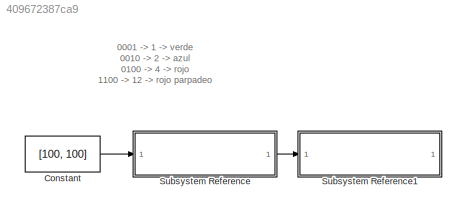
MODEL slx_409672387ca9
KIND model
CONFIG AbsTol = auto
CONFIG EnableMultiTasking = on
CONFIG FixedStep = auto
CONFIG MaxStep = auto
CONFIG MinStep = auto
CONFIG RelTol = 1e-3
CONFIG SampleTimeConstraint = Unconstrained
CONFIG SolverName = FixedStepAuto
CONFIG StartTime = 0.0
CONFIG StopTime = inf
BLOCK [Constant] Constant
  OutDataTypeStr = uint8
  Value = [100, 100]
BLOCK [SubSystem] Subsystem Reference
  ReferencedSubsystem = LedsObstacul
BLOCK [SubSystem] Subsystem Reference1
  ReferencedSubsystem = LedsBitsDJ
ANNOTATION (root): 0001 -> 1 -> verde 0010 -> 2 -> azul 0100 -> 4 -> rojo 1100 -> 12 -> rojo parpadeo
LINE Constant:1 -> Subsystem Reference:1
LINE Subsystem Reference:1 -> Subsystem Reference1:1
